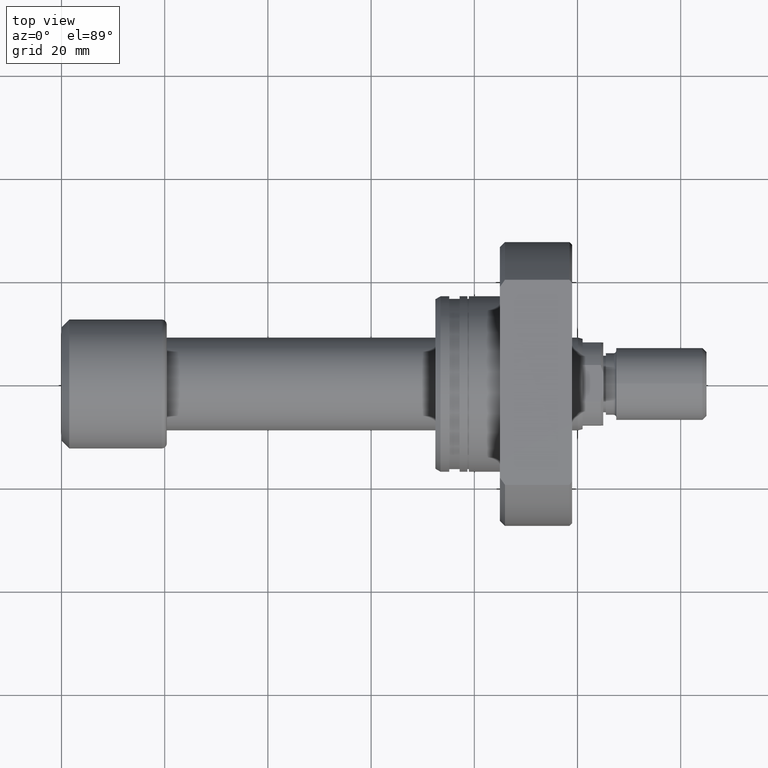
[diagram: clean part render]
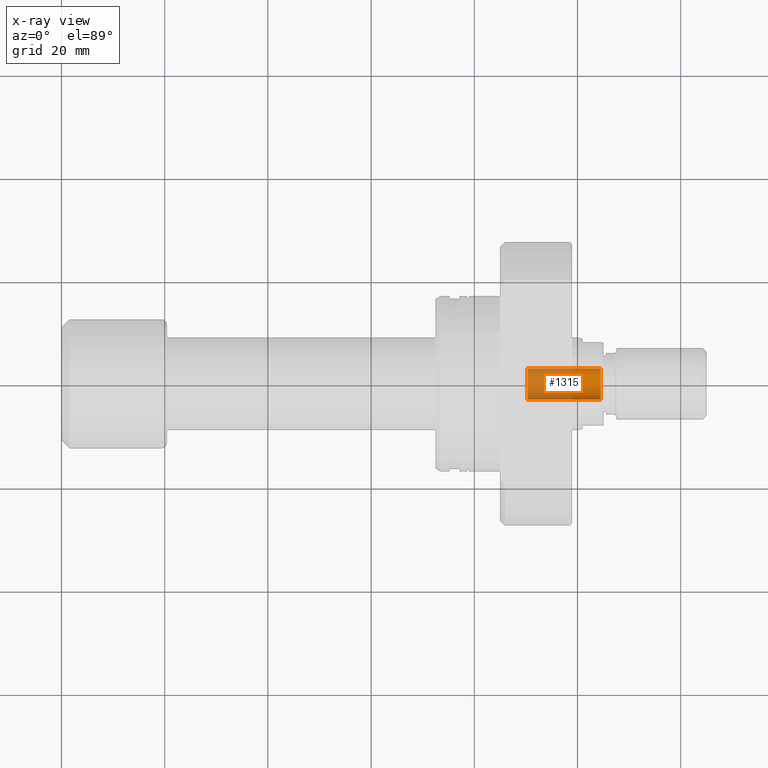
[diagram: x-ray — body ghosted, one internal face saturated and labeled with its STEP entity id]
A machine part, top view, then the same camera in x-ray: the body is ghosted and one INTERNAL B-rep face — a face not visible from any outside direction — is saturated and labeled: STEP entity #1315.
In plain terms, the highlighted cylindrical surface (edge-blend (fillet) strip) has radius 3 mm, axis along (1, -0, 0).
Its self-contained STEP definition (entity closure, byte-faithful):
#98 = CARTESIAN_POINT ( 'NONE',  ( 90.29999999999998295, -1.496510113941484110E-12, 0.000000000000000000 ) ) ;
#618 = ORIENTED_EDGE ( 'NONE', *, *, #2933, .T. ) ;
#748 = FACE_OUTER_BOUND ( 'NONE', #3679, .T. ) ;
#820 = DIRECTION ( 'NONE',  ( 1.000000000000000000, -1.657264799492230625E-14, -0.000000000000000000 ) ) ;
#832 = CARTESIAN_POINT ( 'NONE',  ( 90.29999999999992610, -3.000000000002005951, 3.673940397442683068E-16 ) ) ;
#1055 = EDGE_CURVE ( 'NONE', #2790, #3193, #1364, .T. ) ;
#1108 = ORIENTED_EDGE ( 'NONE', *, *, #1055, .F. ) ;
#1301 = CARTESIAN_POINT ( 'NONE',  ( 90.29999999999992610, -3.000000000002005951, 3.673940397442683068E-16 ) ) ;
#1315 = ADVANCED_FACE ( 'NONE', ( #748 ), #2440, .F. ) ;
#1364 = LINE ( 'NONE', #1957, #2998 ) ;
#1455 = ORIENTED_EDGE ( 'NONE', *, *, #1851, .F. ) ;
#1593 = CARTESIAN_POINT ( 'NONE',  ( 90.29999999999998295, -1.496510113941484110E-12, 0.000000000000000000 ) ) ;
#1851 = EDGE_CURVE ( 'NONE', #2726, #2790, #3488, .T. ) ;
#1887 = DIRECTION ( 'NONE',  ( 1.000000000000000000, -1.657264799492254606E-14, 0.000000000000000000 ) ) ;
#1904 = DIRECTION ( 'NONE',  ( -1.850371707708280162E-14, -1.000000000000000000, 0.000000000000000000 ) ) ;
#1913 = AXIS2_PLACEMENT_3D ( 'NONE', #1593, #3029, #2674 ) ;
#1957 = CARTESIAN_POINT ( 'NONE',  ( 90.30000000000003979, 2.999999999999012790, 0.000000000000000000 ) ) ;
#2066 = AXIS2_PLACEMENT_3D ( 'NONE', #98, #3584, #3537 ) ;
#2125 = EDGE_CURVE ( 'NONE', #2726, #2902, #3386, .T. ) ;
#2187 = CARTESIAN_POINT ( 'NONE',  ( 104.5000000000000568, -3.000000000002240430, 3.673940397442826542E-16 ) ) ;
#2224 = AXIS2_PLACEMENT_3D ( 'NONE', #2492, #1887, #1904 ) ;
#2440 = CYLINDRICAL_SURFACE ( 'NONE', #2066, 3.000000000000509370 ) ;
#2492 = CARTESIAN_POINT ( 'NONE',  ( 104.5000000000001137, -1.731841715469383114E-12, 0.000000000000000000 ) ) ;
#2543 = DIRECTION ( 'NONE',  ( 1.000000000000000000, -1.657264799492230625E-14, -0.000000000000000000 ) ) ;
#2674 = DIRECTION ( 'NONE',  ( 1.850371707708280162E-14, 1.000000000000000000, 0.000000000000000000 ) ) ;
#2726 = VERTEX_POINT ( 'NONE', #1301 ) ;
#2770 = CARTESIAN_POINT ( 'NONE',  ( 90.30000000000003979, 2.999999999999012790, 0.000000000000000000 ) ) ;
#2790 = VERTEX_POINT ( 'NONE', #2770 ) ;
#2902 = VERTEX_POINT ( 'NONE', #2187 ) ;
#2933 = EDGE_CURVE ( 'NONE', #2902, #3193, #2949, .T. ) ;
#2949 = CIRCLE ( 'NONE', #2224, 3.000000000000509370 ) ;
#2998 = VECTOR ( 'NONE', #820, 1000.000000000000000 ) ;
#3029 = DIRECTION ( 'NONE',  ( 1.000000000000000000, -1.657264799492230625E-14, 0.000000000000000000 ) ) ;
#3048 = CARTESIAN_POINT ( 'NONE',  ( 104.5000000000001563, 2.999999999998777422, 0.000000000000000000 ) ) ;
#3193 = VERTEX_POINT ( 'NONE', #3048 ) ;
#3265 = ORIENTED_EDGE ( 'NONE', *, *, #2125, .T. ) ;
#3386 = LINE ( 'NONE', #832, #3595 ) ;
#3488 = CIRCLE ( 'NONE', #1913, 3.000000000000509370 ) ;
#3537 = DIRECTION ( 'NONE',  ( 1.850371707708280162E-14, 1.000000000000000000, 0.000000000000000000 ) ) ;
#3584 = DIRECTION ( 'NONE',  ( 1.000000000000000000, -1.657264799492230625E-14, -0.000000000000000000 ) ) ;
#3595 = VECTOR ( 'NONE', #2543, 1000.000000000000000 ) ;
#3679 = EDGE_LOOP ( 'NONE', ( #1455, #3265, #618, #1108 ) ) ;